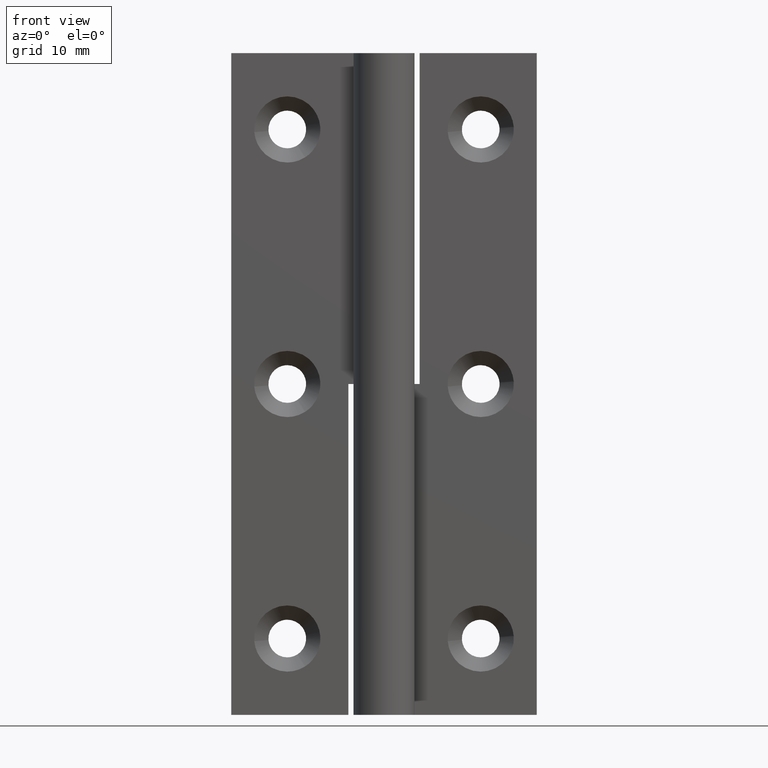
[diagram: clean part render]
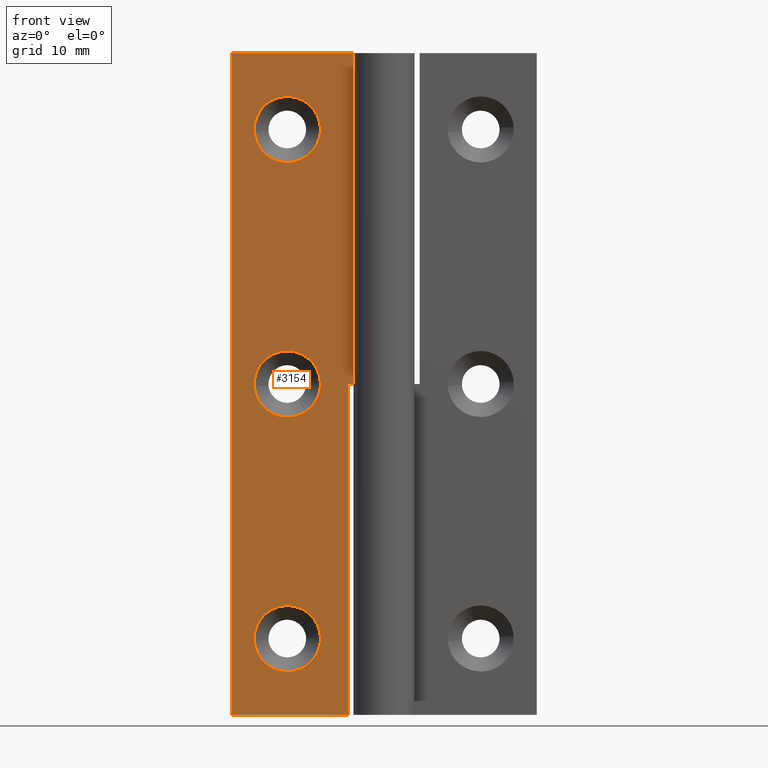
[diagram: same view with one face highlighted and labeled with its STEP entity id]
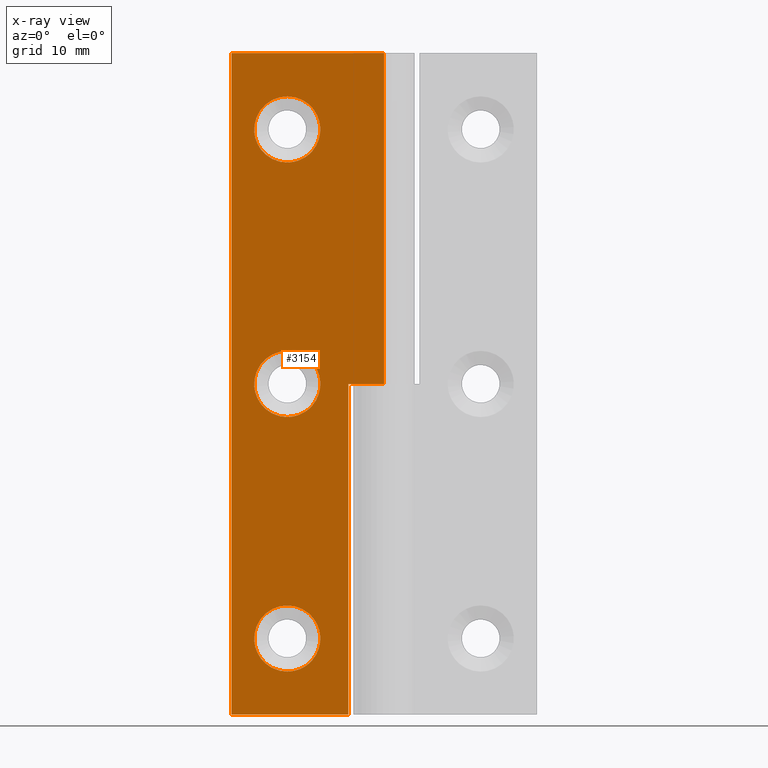
[diagram: x-ray of the same camera — body ghosted, the highlighted face saturated]
A machine part, front view. The second image highlights one B-rep face of the part: STEP entity #3154.
The next image is the same camera in x-ray: the body ghosted, the highlighted face saturated — about 0% of this face is hidden behind the body in this view.
In plain terms, the highlighted face is a freeform B-spline surface patch.
Its self-contained STEP definition (entity closure, byte-faithful):
#1782=CARTESIAN_POINT('',(-7.751984921227473,1.499999999995507,54.760126841231539));
#1783=VERTEX_POINT('',#1782);
#1789=CARTESIAN_POINT('',(-9.500000000000000,1.500000000000000,60.750006999999997));
#1790=VERTEX_POINT('',#1789);
#1791=CARTESIAN_POINT('',(-9.500000000000000,1.500000000000000,60.750006999999997));
#1792=CARTESIAN_POINT('',(-6.249999999999999,1.500000000000000,60.750007000000004));
#1793=CARTESIAN_POINT('',(-6.250000000000000,1.500000000000000,57.500006999999997));
#1794=CARTESIAN_POINT('',(-6.250000000000000,1.500000000000000,55.718377618060089));
#1795=CARTESIAN_POINT('',(-7.751984921227473,1.499999999995507,54.760126841231546));
#1803=(BOUNDED_CURVE()B_SPLINE_CURVE(2,(#1791,#1792,#1793,#1794,#1795),.UNSPECIFIED.,.F.,.U.)B_SPLINE_CURVE_WITH_KNOTS((3,2,3),(0.0,0.250000000000000,0.407950112619774),.UNSPECIFIED.)CURVE()GEOMETRIC_REPRESENTATION_ITEM()RATIONAL_B_SPLINE_CURVE((1.0,0.707106781186547,1.0,0.814949932411389,0.863729296950120))REPRESENTATION_ITEM(''));
#1804=EDGE_CURVE('',#1790,#1783,#1803,.T.);
#1806=CARTESIAN_POINT('',(-12.739981334661300,1.499999999928261,57.245014938334052));
#1807=VERTEX_POINT('',#1806);
#1808=CARTESIAN_POINT('',(-12.739981334661300,1.499999999928261,57.245014938334052));
#1809=CARTESIAN_POINT('',(-12.750000000000004,1.500000000000000,57.372314151677728));
#1810=CARTESIAN_POINT('',(-12.750000000000000,1.500000000000000,57.500006999999997));
#1811=CARTESIAN_POINT('',(-12.750000000000002,1.500000000000000,60.750007000000004));
#1812=CARTESIAN_POINT('',(-9.500000000000000,1.500000000000000,60.750006999999997));
#1820=(BOUNDED_CURVE()B_SPLINE_CURVE(2,(#1808,#1809,#1810,#1811,#1812),.UNSPECIFIED.,.F.,.U.)B_SPLINE_CURVE_WITH_KNOTS((3,2,3),(0.736331300575115,0.750000000000000,1.0),.UNSPECIFIED.)CURVE()GEOMETRIC_REPRESENTATION_ITEM()RATIONAL_B_SPLINE_CURVE((0.969723356051501,0.983986122513807,1.0,0.707106781186547,1.0))REPRESENTATION_ITEM(''));
#1821=EDGE_CURVE('',#1807,#1790,#1820,.T.);
#1925=CARTESIAN_POINT('',(-9.500000000000000,1.500000000000000,54.250006999999997));
#1926=VERTEX_POINT('',#1925);
#1927=CARTESIAN_POINT('',(-9.500000000000000,1.500000000000000,54.250006999999997));
#1928=CARTESIAN_POINT('',(-12.504269096875671,1.500000000000000,54.250007000000011));
#1929=CARTESIAN_POINT('',(-12.739981334661298,1.499999999928261,57.245014938334052));
#1937=(BOUNDED_CURVE()B_SPLINE_CURVE(2,(#1927,#1928,#1929),.UNSPECIFIED.,.F.,.U.)B_SPLINE_CURVE_WITH_KNOTS((3,3),(0.500000000000000,0.736331300575114),.UNSPECIFIED.)CURVE()GEOMETRIC_REPRESENTATION_ITEM()RATIONAL_B_SPLINE_CURVE((1.0,0.723120658672741,0.969723356051499))REPRESENTATION_ITEM(''));
#1938=EDGE_CURVE('',#1926,#1807,#1937,.T.);
#1940=CARTESIAN_POINT('',(-7.751984921227473,1.499999999995507,54.760126841231546));
#1941=CARTESIAN_POINT('',(-8.551558819927349,1.500000000000000,54.250006999999997));
#1942=CARTESIAN_POINT('',(-9.500000000000000,1.500000000000000,54.250006999999997));
#1950=(BOUNDED_CURVE()B_SPLINE_CURVE(2,(#1940,#1941,#1942),.UNSPECIFIED.,.F.,.U.)B_SPLINE_CURVE_WITH_KNOTS((3,3),(0.407950112619774,0.500000000000000),.UNSPECIFIED.)CURVE()GEOMETRIC_REPRESENTATION_ITEM()RATIONAL_B_SPLINE_CURVE((0.863729296950120,0.892156848775159,1.0))REPRESENTATION_ITEM(''));
#1951=EDGE_CURVE('',#1783,#1926,#1950,.T.);
#2126=CARTESIAN_POINT('',(-7.751984921227470,1.499999999995505,29.760119841231539));
#2127=VERTEX_POINT('',#2126);
#2133=CARTESIAN_POINT('',(-9.500000000000000,1.500000000000000,35.750000000000007));
#2134=VERTEX_POINT('',#2133);
#2135=CARTESIAN_POINT('',(-9.500000000000000,1.500000000000000,35.750000000000007));
#2136=CARTESIAN_POINT('',(-6.249999999999999,1.500000000000000,35.750000000000007));
#2137=CARTESIAN_POINT('',(-6.250000000000000,1.500000000000000,32.500000000000000));
#2138=CARTESIAN_POINT('',(-6.250000000000000,1.500000000000000,30.718370618060096));
#2139=CARTESIAN_POINT('',(-7.751984921227470,1.499999999995505,29.760119841231536));
#2147=(BOUNDED_CURVE()B_SPLINE_CURVE(2,(#2135,#2136,#2137,#2138,#2139),.UNSPECIFIED.,.F.,.U.)B_SPLINE_CURVE_WITH_KNOTS((3,2,3),(0.0,0.250000000000000,0.407950112619773),.UNSPECIFIED.)CURVE()GEOMETRIC_REPRESENTATION_ITEM()RATIONAL_B_SPLINE_CURVE((1.0,0.707106781186547,1.0,0.814949932411389,0.863729296950120))REPRESENTATION_ITEM(''));
#2148=EDGE_CURVE('',#2134,#2127,#2147,.T.);
#2150=CARTESIAN_POINT('',(-12.739981334661300,1.499999999928262,32.245007938334062));
#2151=VERTEX_POINT('',#2150);
#2152=CARTESIAN_POINT('',(-12.739981334661302,1.499999999928262,32.245007938334055));
#2153=CARTESIAN_POINT('',(-12.750000000000002,1.500000000000000,32.372307151677717));
#2154=CARTESIAN_POINT('',(-12.750000000000000,1.500000000000000,32.500000000000000));
#2155=CARTESIAN_POINT('',(-12.750000000000002,1.500000000000000,35.750000000000007));
#2156=CARTESIAN_POINT('',(-9.500000000000000,1.500000000000000,35.750000000000007));
#2164=(BOUNDED_CURVE()B_SPLINE_CURVE(2,(#2152,#2153,#2154,#2155,#2156),.UNSPECIFIED.,.F.,.U.)B_SPLINE_CURVE_WITH_KNOTS((3,2,3),(0.736331300575115,0.750000000000000,1.0),.UNSPECIFIED.)CURVE()GEOMETRIC_REPRESENTATION_ITEM()RATIONAL_B_SPLINE_CURVE((0.969723356051500,0.983986122513807,1.0,0.707106781186547,1.0))REPRESENTATION_ITEM(''));
#2165=EDGE_CURVE('',#2151,#2134,#2164,.T.);
#2269=CARTESIAN_POINT('',(-9.500000000000000,1.500000000000000,29.250000000000000));
#2270=VERTEX_POINT('',#2269);
#2271=CARTESIAN_POINT('',(-9.500000000000000,1.500000000000000,29.250000000000000));
#2272=CARTESIAN_POINT('',(-12.504269096875671,1.500000000000000,29.249999999999989));
#2273=CARTESIAN_POINT('',(-12.739981334661298,1.499999999928262,32.245007938334055));
#2281=(BOUNDED_CURVE()B_SPLINE_CURVE(2,(#2271,#2272,#2273),.UNSPECIFIED.,.F.,.U.)B_SPLINE_CURVE_WITH_KNOTS((3,3),(0.500000000000000,0.736331300575114),.UNSPECIFIED.)CURVE()GEOMETRIC_REPRESENTATION_ITEM()RATIONAL_B_SPLINE_CURVE((1.0,0.723120658672741,0.969723356051499))REPRESENTATION_ITEM(''));
#2282=EDGE_CURVE('',#2270,#2151,#2281,.T.);
#2284=CARTESIAN_POINT('',(-7.751984921227470,1.499999999995505,29.760119841231536));
#2285=CARTESIAN_POINT('',(-8.551558819927347,1.500000000000000,29.250000000000004));
#2286=CARTESIAN_POINT('',(-9.500000000000000,1.500000000000000,29.250000000000000));
#2294=(BOUNDED_CURVE()B_SPLINE_CURVE(2,(#2284,#2285,#2286),.UNSPECIFIED.,.F.,.U.)B_SPLINE_CURVE_WITH_KNOTS((3,3),(0.407950112619773,0.500000000000000),.UNSPECIFIED.)CURVE()GEOMETRIC_REPRESENTATION_ITEM()RATIONAL_B_SPLINE_CURVE((0.863729296950120,0.892156848775159,1.0))REPRESENTATION_ITEM(''));
#2295=EDGE_CURVE('',#2127,#2270,#2294,.T.);
#2470=CARTESIAN_POINT('',(-7.751984921227471,1.499999999995506,4.760119841231441));
#2471=VERTEX_POINT('',#2470);
#2477=CARTESIAN_POINT('',(-9.500000000000000,1.500000000000000,10.749999999999901));
#2478=VERTEX_POINT('',#2477);
#2479=CARTESIAN_POINT('',(-9.500000000000000,1.500000000000000,10.749999999999901));
#2480=CARTESIAN_POINT('',(-6.249999999999999,1.500000000000000,10.749999999999901));
#2481=CARTESIAN_POINT('',(-6.250000000000000,1.500000000000000,7.499999999999900));
#2482=CARTESIAN_POINT('',(-6.250000000000001,1.500000000000000,5.718370618059993));
#2483=CARTESIAN_POINT('',(-7.751984921227472,1.499999999995506,4.760119841231442));
#2491=(BOUNDED_CURVE()B_SPLINE_CURVE(2,(#2479,#2480,#2481,#2482,#2483),.UNSPECIFIED.,.F.,.U.)B_SPLINE_CURVE_WITH_KNOTS((3,2,3),(0.0,0.250000000000000,0.407950112619774),.UNSPECIFIED.)CURVE()GEOMETRIC_REPRESENTATION_ITEM()RATIONAL_B_SPLINE_CURVE((1.0,0.707106781186547,1.0,0.814949932411389,0.863729296950120))REPRESENTATION_ITEM(''));
#2492=EDGE_CURVE('',#2478,#2471,#2491,.T.);
#2494=CARTESIAN_POINT('',(-12.739981334661300,1.499999999928261,7.245007938333957));
#2495=VERTEX_POINT('',#2494);
#2496=CARTESIAN_POINT('',(-12.739981334661303,1.499999999928261,7.245007938333957));
#2497=CARTESIAN_POINT('',(-12.750000000000000,1.500000000000000,7.372307151677627));
#2498=CARTESIAN_POINT('',(-12.750000000000000,1.500000000000000,7.499999999999900));
#2499=CARTESIAN_POINT('',(-12.750000000000002,1.500000000000000,10.749999999999901));
#2500=CARTESIAN_POINT('',(-9.500000000000000,1.500000000000000,10.749999999999901));
#2508=(BOUNDED_CURVE()B_SPLINE_CURVE(2,(#2496,#2497,#2498,#2499,#2500),.UNSPECIFIED.,.F.,.U.)B_SPLINE_CURVE_WITH_KNOTS((3,2,3),(0.736331300575115,0.750000000000000,1.0),.UNSPECIFIED.)CURVE()GEOMETRIC_REPRESENTATION_ITEM()RATIONAL_B_SPLINE_CURVE((0.969723356051501,0.983986122513808,1.0,0.707106781186547,1.0))REPRESENTATION_ITEM(''));
#2509=EDGE_CURVE('',#2495,#2478,#2508,.T.);
#2613=CARTESIAN_POINT('',(-9.500000000000000,1.500000000000000,4.249999999999900));
#2614=VERTEX_POINT('',#2613);
#2615=CARTESIAN_POINT('',(-9.500000000000000,1.500000000000000,4.249999999999900));
#2616=CARTESIAN_POINT('',(-12.504269096875671,1.500000000000000,4.249999999999900));
#2617=CARTESIAN_POINT('',(-12.739981334661298,1.499999999928261,7.245007938333957));
#2625=(BOUNDED_CURVE()B_SPLINE_CURVE(2,(#2615,#2616,#2617),.UNSPECIFIED.,.F.,.U.)B_SPLINE_CURVE_WITH_KNOTS((3,3),(0.500000000000000,0.736331300575114),.UNSPECIFIED.)CURVE()GEOMETRIC_REPRESENTATION_ITEM()RATIONAL_B_SPLINE_CURVE((1.0,0.723120658672741,0.969723356051499))REPRESENTATION_ITEM(''));
#2626=EDGE_CURVE('',#2614,#2495,#2625,.T.);
#2628=CARTESIAN_POINT('',(-7.751984921227471,1.499999999995506,4.760119841231442));
#2629=CARTESIAN_POINT('',(-8.551558819927349,1.500000000000000,4.249999999999900));
#2630=CARTESIAN_POINT('',(-9.500000000000000,1.500000000000000,4.249999999999900));
#2638=(BOUNDED_CURVE()B_SPLINE_CURVE(2,(#2628,#2629,#2630),.UNSPECIFIED.,.F.,.U.)B_SPLINE_CURVE_WITH_KNOTS((3,3),(0.407950112619773,0.500000000000000),.UNSPECIFIED.)CURVE()GEOMETRIC_REPRESENTATION_ITEM()RATIONAL_B_SPLINE_CURVE((0.863729296950120,0.892156848775159,1.0))REPRESENTATION_ITEM(''));
#2639=EDGE_CURVE('',#2471,#2614,#2638,.T.);
#2778=CARTESIAN_POINT('',(-3.500000000000000,1.500000000000000,0.0));
#2779=VERTEX_POINT('',#2778);
#2794=CARTESIAN_POINT('',(-3.500000000000000,1.499999999999946,32.500000000000000));
#2795=VERTEX_POINT('',#2794);
#2801=CARTESIAN_POINT('',(-3.500000000000000,1.500000000000000,0.0));
#2802=CARTESIAN_POINT('',(-3.500000000000000,1.499999999999946,32.500000000000000));
#2803=QUASI_UNIFORM_CURVE('',1,(#2801,#2802),.UNSPECIFIED.,.F.,.U.);
#2804=EDGE_CURVE('',#2779,#2795,#2803,.T.);
#2850=CARTESIAN_POINT('',(-2.755364E-016,1.500000000000000,32.500000000000000));
#2851=VERTEX_POINT('',#2850);
#2871=CARTESIAN_POINT('',(-3.500000000000000,1.499999999999946,32.500000000000000));
#2872=CARTESIAN_POINT('',(-2.755364E-016,1.500000000000000,32.500000000000000));
#2873=QUASI_UNIFORM_CURVE('',1,(#2871,#2872),.UNSPECIFIED.,.F.,.U.);
#2874=EDGE_CURVE('',#2795,#2851,#2873,.T.);
#2885=CARTESIAN_POINT('',(-15.0,1.500000000000000,0.0));
#2886=VERTEX_POINT('',#2885);
#2887=CARTESIAN_POINT('',(-15.0,1.500000000000000,0.0));
#2888=CARTESIAN_POINT('',(-3.500000000000000,1.500000000000000,0.0));
#2889=QUASI_UNIFORM_CURVE('',1,(#2887,#2888),.UNSPECIFIED.,.F.,.U.);
#2890=EDGE_CURVE('',#2886,#2779,#2889,.T.);
#2912=CARTESIAN_POINT('',(-15.0,1.500000000000000,65.000006999999997));
#2913=VERTEX_POINT('',#2912);
#2914=CARTESIAN_POINT('',(-2.755364E-016,1.500000000000000,65.000006999999997));
#2915=VERTEX_POINT('',#2914);
#2916=CARTESIAN_POINT('',(-15.0,1.500000000000000,65.000006999999997));
#2917=CARTESIAN_POINT('',(-2.755364E-016,1.500000000000000,65.000006999999997));
#2918=QUASI_UNIFORM_CURVE('',1,(#2916,#2917),.UNSPECIFIED.,.F.,.U.);
#2919=EDGE_CURVE('',#2913,#2915,#2918,.T.);
#2991=CARTESIAN_POINT('',(-15.0,1.500000000000000,65.000006999999997));
#2992=CARTESIAN_POINT('',(-15.0,1.500000000000000,0.0));
#2993=QUASI_UNIFORM_CURVE('',1,(#2991,#2992),.UNSPECIFIED.,.F.,.U.);
#2994=EDGE_CURVE('',#2913,#2886,#2993,.T.);
#3112=CARTESIAN_POINT('',(-2.755364E-016,1.500000000000000,65.000006999999997));
#3113=CARTESIAN_POINT('',(-2.755364E-016,1.500000000000000,32.500000000000000));
#3114=QUASI_UNIFORM_CURVE('',1,(#3112,#3113),.UNSPECIFIED.,.F.,.U.);
#3115=EDGE_CURVE('',#2915,#2851,#3114,.T.);
#3123=CARTESIAN_POINT('',(-15.749249970927091,1.500000000000000,-3.246750223667376));
#3124=CARTESIAN_POINT('',(-15.749249970927091,1.500000000000000,68.246758967103403));
#3125=CARTESIAN_POINT('',(0.749250373258440,1.500000000000000,-3.246750223667376));
#3126=CARTESIAN_POINT('',(0.749250373258440,1.500000000000000,68.246758967103418));
#3127=B_SPLINE_SURFACE_WITH_KNOTS('',1,1,((#3123,#3125),(#3124,#3126)),.UNSPECIFIED.,.F.,.F.,.U.,(2,2),(2,2),(0.0,71.493509190770794),(0.0,16.498500344185530),.UNSPECIFIED.);
#3128=ORIENTED_EDGE('',*,*,#2890,.T.);
#3129=ORIENTED_EDGE('',*,*,#2804,.T.);
#3130=ORIENTED_EDGE('',*,*,#2874,.T.);
#3131=ORIENTED_EDGE('',*,*,#3115,.F.);
#3132=ORIENTED_EDGE('',*,*,#2919,.F.);
#3133=ORIENTED_EDGE('',*,*,#2994,.T.);
#3134=EDGE_LOOP('',(#3128,#3129,#3130,#3131,#3132,#3133));
#3135=FACE_OUTER_BOUND('',#3134,.T.);
#3136=ORIENTED_EDGE('',*,*,#2626,.T.);
#3137=ORIENTED_EDGE('',*,*,#2509,.T.);
#3138=ORIENTED_EDGE('',*,*,#2492,.T.);
#3139=ORIENTED_EDGE('',*,*,#2639,.T.);
#3140=EDGE_LOOP('',(#3136,#3137,#3138,#3139));
#3141=FACE_BOUND('',#3140,.T.);
#3142=ORIENTED_EDGE('',*,*,#2282,.T.);
#3143=ORIENTED_EDGE('',*,*,#2165,.T.);
#3144=ORIENTED_EDGE('',*,*,#2148,.T.);
#3145=ORIENTED_EDGE('',*,*,#2295,.T.);
#3146=EDGE_LOOP('',(#3142,#3143,#3144,#3145));
#3147=FACE_BOUND('',#3146,.T.);
#3148=ORIENTED_EDGE('',*,*,#1938,.T.);
#3149=ORIENTED_EDGE('',*,*,#1821,.T.);
#3150=ORIENTED_EDGE('',*,*,#1804,.T.);
#3151=ORIENTED_EDGE('',*,*,#1951,.T.);
#3152=EDGE_LOOP('',(#3148,#3149,#3150,#3151));
#3153=FACE_BOUND('',#3152,.T.);
#3154=ADVANCED_FACE('',(#3135,#3141,#3147,#3153),#3127,.F.);